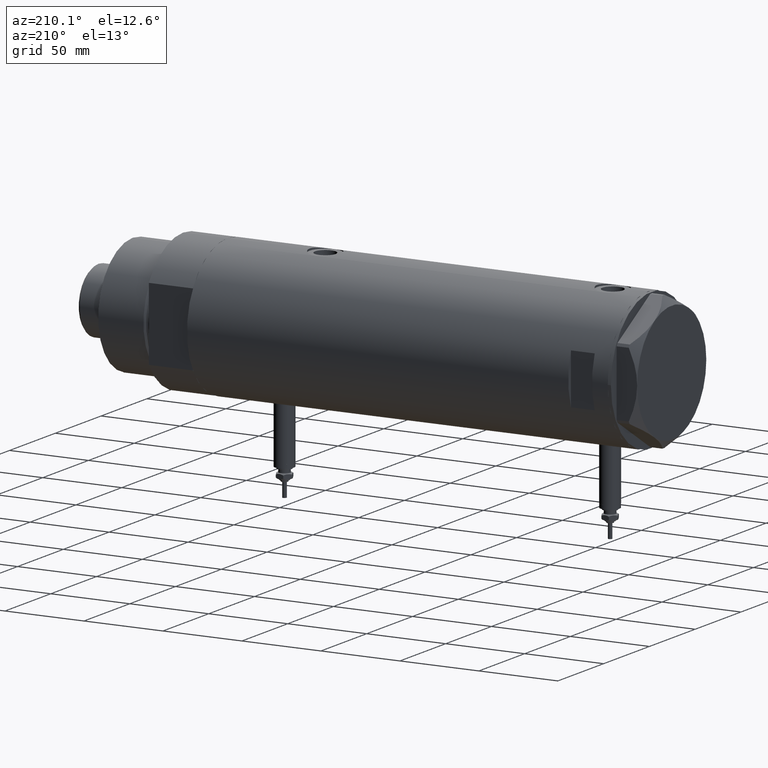
[diagram: clean part render]
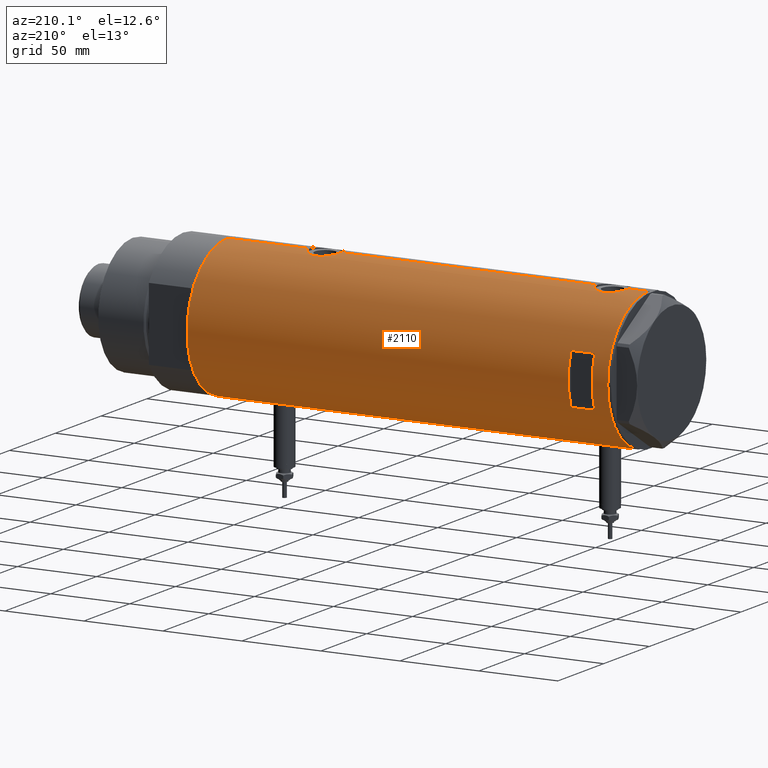
[diagram: same view with one face highlighted and labeled with its STEP entity id]
A machine part, auxiliary view. The second image highlights one B-rep face of the part: STEP entity #2110.
In plain terms, the highlighted cylindrical surface (partial cylindrical patch) has radius 44 mm, axis along (-1, -0, 0).
Its self-contained STEP definition (entity closure, byte-faithful):
#19 = VECTOR ( 'NONE', #2995, 1000.000000000000000 ) ;
#47 = CARTESIAN_POINT ( 'NONE',  ( -43.99413512814552263, 0.8228129877960659311, 102.9909168567417623 ) ) ;
#67 = ORIENTED_EDGE ( 'NONE', *, *, #3993, .F. ) ;
#107 = VECTOR ( 'NONE', #5925, 1000.000000000000000 ) ;
#111 = CARTESIAN_POINT ( 'NONE',  ( 43.68141895191831736, 5.292250119194734204, 119.3910495228519437 ) ) ;
#120 = VERTEX_POINT ( 'NONE', #2300 ) ;
#138 = CARTESIAN_POINT ( 'NONE',  ( 43.92756755766649235, 2.604528169608121946, -61.42286588097655908 ) ) ;
#168 = CARTESIAN_POINT ( 'NONE',  ( 43.77939001959705934, 4.442287752090383179, -80.08306177559163075 ) ) ;
#181 = CARTESIAN_POINT ( 'NONE',  ( -44.00000000000000000, 5.388445781982983516E-15, -103.1499999999999915 ) ) ;
#193 = CARTESIAN_POINT ( 'NONE',  ( 43.17277162440354488, 8.493905080221260562, -76.38787035108494194 ) ) ;
#204 = CARTESIAN_POINT ( 'NONE',  ( -43.95446647384543581, 2.010857111636599637, -90.97875773636060615 ) ) ;
#209 = CARTESIAN_POINT ( 'NONE',  ( -44.00000000000000000, 5.388445916248353619E-15, -133.1999999999999886 ) ) ;
#226 = CIRCLE ( 'NONE', #1967, 44.00000000000000000 ) ;
#243 = VECTOR ( 'NONE', #497, 1000.000000000000000 ) ;
#256 = CARTESIAN_POINT ( 'NONE',  ( 44.00000000000000000, 0.3269372501759409411, -61.10000000000001563 ) ) ;
#287 = CARTESIAN_POINT ( 'NONE',  ( 15.96871942267132027, 40.99999999999999289, -133.1999999999999886 ) ) ;
#301 = ORIENTED_EDGE ( 'NONE', *, *, #1733, .F. ) ;
#309 = CARTESIAN_POINT ( 'NONE',  ( 43.35294442506074120, 7.532526048221051873, 104.2906458550888971 ) ) ;
#320 = ORIENTED_EDGE ( 'NONE', *, *, #4632, .F. ) ;
#341 = CARTESIAN_POINT ( 'NONE',  ( -43.67867890111967455, 5.309046579850785541, -100.2042277907602141 ) ) ;
#342 = CARTESIAN_POINT ( 'NONE',  ( 44.00000000000000000, -3.917155089190972685E-21, -61.10000000000000142 ) ) ;
#357 = VERTEX_POINT ( 'NONE', #3507 ) ;
#372 = CARTESIAN_POINT ( 'NONE',  ( -43.59995593514495482, 5.920088975424566691, -94.88582091308217059 ) ) ;
#373 = CARTESIAN_POINT ( 'NONE',  ( 43.57657781376909156, 6.094873943596678778, 102.9652569888040290 ) ) ;
#400 = CARTESIAN_POINT ( 'NONE',  ( -43.57657963456318839, 6.089610171536606664, -95.47821460419186224 ) ) ;
#419 = AXIS2_PLACEMENT_3D ( 'NONE', #2740, #3285, #4602 ) ;
#440 = EDGE_CURVE ( 'NONE', #5231, #5683, #3969, .T. ) ;
#463 = CARTESIAN_POINT ( 'NONE',  ( 44.00000000000000000, -3.917104602093038540E-21, 120.8999999999999773 ) ) ;
#475 = CARTESIAN_POINT ( 'NONE',  ( -44.00000000000000000, 4.742435893011557518E-16, -90.64999999999997726 ) ) ;
#497 = DIRECTION ( 'NONE',  ( 0.000000000000000000, 0.000000000000000000, 1.000000000000000000 ) ) ;
#520 = FACE_OUTER_BOUND ( 'NONE', #2469, .T. ) ;
#532 = LINE ( 'NONE', #2072, #19 ) ;
#537 = ORIENTED_EDGE ( 'NONE', *, *, #1919, .F. ) ;
#567 = CARTESIAN_POINT ( 'NONE',  ( 42.84863276153907208, 9.999733523508362865, -71.75869904750778971 ) ) ;
#579 = CARTESIAN_POINT ( 'NONE',  ( 43.57805684119164624, 6.103282219787165452, 118.8481620164785824 ) ) ;
#594 = CARTESIAN_POINT ( 'NONE',  ( 43.80640706382535399, 4.134078575915395071, -61.98867178437915015 ) ) ;
#607 = AXIS2_PLACEMENT_3D ( 'NONE', #3108, #883, #793 ) ;
#634 = CARTESIAN_POINT ( 'NONE',  ( 43.85884410404901246, 3.534688330930384925, -80.46019808750332913 ) ) ;
#663 = CARTESIAN_POINT ( 'NONE',  ( 43.50382207688846137, 6.605942769308308371, -63.56395311161777784 ) ) ;
#687 = CARTESIAN_POINT ( 'NONE',  ( 43.71659050864932539, 5.015880325000608764, -79.77566825963823760 ) ) ;
#736 = CARTESIAN_POINT ( 'NONE',  ( -43.71901936021023971, 4.969830049220626655, 105.3883236230112317 ) ) ;
#748 = CARTESIAN_POINT ( 'NONE',  ( 43.04663170950395568, 9.110642017076083121, 106.7645249780960484 ) ) ;
#782 = CARTESIAN_POINT ( 'NONE',  ( -43.88968326835893663, 3.132363423941621150, 114.6237923235648140 ) ) ;
#793 = DIRECTION ( 'NONE',  ( -1.000000000000000000, -8.881784197001252323E-16, 0.000000000000000000 ) ) ;
#799 = CARTESIAN_POINT ( 'NONE',  ( 42.86370458161099606, 9.935807968041567406, 109.5909544957013395 ) ) ;
#828 = CARTESIAN_POINT ( 'NONE',  ( 0.000000000000000000, 0.000000000000000000, -133.1999999999999886 ) ) ;
#850 = CARTESIAN_POINT ( 'NONE',  ( -43.55382423478827292, 6.250151562062086441, 108.7941047051266281 ) ) ;
#856 = CARTESIAN_POINT ( 'NONE',  ( -15.96871942267132027, 40.99999999999999289, 108.1999999999999744 ) ) ;
#862 = CARTESIAN_POINT ( 'NONE',  ( 43.39051256276903246, 7.301963662770311281, 117.7402446821294149 ) ) ;
#865 = VERTEX_POINT ( 'NONE', #181 ) ;
#883 = DIRECTION ( 'NONE',  ( -0.000000000000000000, -0.000000000000000000, 1.000000000000000000 ) ) ;
#888 = CARTESIAN_POINT ( 'NONE',  ( 42.96547725528407824, 9.488625330801083280, 114.1245034721107316 ) ) ;
#893 = VECTOR ( 'NONE', #4171, 1000.000000000000000 ) ;
#922 = CARTESIAN_POINT ( 'NONE',  ( -43.71938389712227746, 4.966728892888062852, -93.08385547659128179 ) ) ;
#924 = CARTESIAN_POINT ( 'NONE',  ( 43.71454618729810448, 5.012329428678959253, 119.5593697405831364 ) ) ;
#1024 = CARTESIAN_POINT ( 'NONE',  ( 42.96879251999280314, 9.470609476412112926, -74.32722899941056482 ) ) ;
#1053 = CARTESIAN_POINT ( 'NONE',  ( 43.68141895191831736, 5.292250119194735980, -62.60895047714807049 ) ) ;
#1067 = CARTESIAN_POINT ( 'NONE',  ( 43.77712723341632994, 4.432620652875498557, 119.8699500975997125 ) ) ;
#1074 = B_SPLINE_CURVE_WITH_KNOTS ( 'NONE', 3,
 ( #2500, #4332, #2001, #2954, #5699, #204, #1548, #5919, #5525, #3174, #1773, #3628, #922, #5860, #4524, #4022, #4551, #372, #1318, #400, #1713, #2161, #2219, #3659, #2252, #3564, #4121, #5408, #5027, #341, #2283, #3201, #5981, #2193, #5470, #1252, #4082, #3110, #4965, #5434, #2780, #5953, #1806 ),
 .UNSPECIFIED., .F., .F.,
 ( 4, 2, 2, 2, 2, 2, 2, 2, 1, 2, 2, 2, 2, 2, 2, 2, 2, 2, 2, 2, 2, 4 ),
 ( 4.607873388256435088E-19, 0.001222818171749670340, 0.001834227257624505619, 0.002445636343499341114, 0.003668454515249027284, 0.004891272686998713454, 0.006114090858748398756, 0.006725499944623259188, 0.007336909030498119620, 0.007948318116372978318, 0.008559727202247837882, 0.009782545373997518848, 0.01100536354574719981, 0.01222818171749687904, 0.01283959080337173861, 0.01345099988924659644, 0.01467381806099631383, 0.01589663623274603296, 0.01650804531862088906, 0.01711945440449574862, 0.01834227257624546428, 0.01956509074799517994 ),
 .UNSPECIFIED. ) ;
#1079 = ORIENTED_EDGE ( 'NONE', *, *, #4776, .F. ) ;
#1106 = EDGE_CURVE ( 'NONE', #4961, #357, #3073, .T. ) ;
#1119 = CARTESIAN_POINT ( 'NONE',  ( 44.00000000000000000, -3.135075661981687665E-15, -81.09999999999999432 ) ) ;
#1164 = CARTESIAN_POINT ( 'NONE',  ( 44.00000000000000000, -2.552687571866728611E-15, 100.8999999999999915 ) ) ;
#1181 = CARTESIAN_POINT ( 'NONE',  ( -43.64133398152736021, 5.607447751852152606, 106.4321395498756715 ) ) ;
#1234 = DIRECTION ( 'NONE',  ( -0.000000000000000000, -0.000000000000000000, -1.000000000000000000 ) ) ;
#1244 = DIRECTION ( 'NONE',  ( 1.000000000000000000, 0.000000000000000000, 0.000000000000000000 ) ) ;
#1248 = CARTESIAN_POINT ( 'NONE',  ( 44.00000000000000000, 0.000000000000000000, -133.1999999999999886 ) ) ;
#1252 = CARTESIAN_POINT ( 'NONE',  ( -43.88883895882799635, 3.130924084324101297, -102.3131245574814443 ) ) ;
#1280 = VECTOR ( 'NONE', #1639, 1000.000000000000000 ) ;
#1304 = CARTESIAN_POINT ( 'NONE',  ( -43.67863969133946966, 5.309394106110037370, 112.5037929650254540 ) ) ;
#1318 = CARTESIAN_POINT ( 'NONE',  ( -43.58362292239462477, 6.039157555656595733, -95.27736421551958301 ) ) ;
#1331 = CARTESIAN_POINT ( 'NONE',  ( -43.95549163632549750, 2.014511215452027937, 103.2694104429502033 ) ) ;
#1343 = CARTESIAN_POINT ( 'NONE',  ( 43.99635668041008074, 0.6544833911834539997, 120.8840070847752912 ) ) ;
#1363 = B_SPLINE_CURVE_WITH_KNOTS ( 'NONE', 3,
 ( #1119, #3899, #4314, #2490, #1601, #5712, #634, #168, #687, #3871, #2541, #4404, #5626, #1565, #1474, #193, #3414, #3359, #5186, #4375, #1024, #2883, #4742, #5658, #567, #3844, #1537, #4351, #5272, #4281, #2974, #5240, #1949, #2938, #3452, #4835, #5213, #663, #5745, #1053, #2909, #4769, #594, #2451, #138, #1989, #4465, #4552, #256, #342 ),
 .UNSPECIFIED., .F., .F.,
 ( 4, 2, 2, 2, 2, 2, 2, 2, 2, 2, 2, 2, 2, 2, 2, 2, 2, 2, 2, 2, 2, 2, 2, 2, 4 ),
 ( 3.045219632368639583E-18, 0.001960456513248893216, 0.002940684769873342860, 0.003920913026497792504, 0.005881369539746674445, 0.006861597796371113681, 0.007841826052995553784, 0.009802282566244465215, 0.01078251082286891746, 0.01176273907949336971, 0.01274296733611782195, 0.01372319559274227246, 0.01568365210599113879, 0.01764410861924000512, 0.01960456513248887145, 0.02058479338911330114, 0.02156502164573773431, 0.02254524990236216400, 0.02352547815898659370, 0.02548593467223548084, 0.02646616292885992441, 0.02744639118548436452, 0.02940684769873325166, 0.03038707595535769523, 0.03136730421198213187 ),
 .UNSPECIFIED. ) ;
#1372 = CARTESIAN_POINT ( 'NONE',  ( 43.27871541412905287, 7.937063204555986573, 116.9917499724602976 ) ) ;
#1474 = CARTESIAN_POINT ( 'NONE',  ( 43.27822890220284791, 7.945655169171514487, -77.20725383289291699 ) ) ;
#1537 = CARTESIAN_POINT ( 'NONE',  ( 42.86396777580259965, 9.934664719553401468, -69.78423800973480695 ) ) ;
#1548 = CARTESIAN_POINT ( 'NONE',  ( -43.94507179847653333, 2.206027755801677870, -91.04868477718203224 ) ) ;
#1565 = CARTESIAN_POINT ( 'NONE',  ( 43.35294442506074830, 7.532526048221050097, -77.70935414491110294 ) ) ;
#1592 = B_SPLINE_CURVE_WITH_KNOTS ( 'NONE', 3,
 ( #1164, #4941, #5436, #2626, #5803, #2131, #5409, #2660, #3060, #3025, #373, #4883, #4490, #309, #2107, #4916, #3961, #1654, #748, #3565, #3111, #4967, #2605, #799, #3987, #4124, #5672, #5054, #888, #2748, #5184, #1855, #2313, #5028, #1372, #3684, #862, #5920, #579, #111, #924, #1067, #1829, #5500, #1808, #2810, #4612, #1343, #5526, #463 ),
 .UNSPECIFIED., .F., .F.,
 ( 4, 2, 2, 2, 2, 2, 2, 2, 2, 2, 2, 2, 2, 2, 2, 2, 2, 2, 2, 2, 2, 2, 2, 2, 4 ),
 ( 2.479523669370822448E-18, 0.001960456513248879339, 0.002940684769873313370, 0.003920913026497747401, 0.005881369539746631077, 0.006861597796371071180, 0.007841826052995510415, 0.009802282566244392356, 0.01078251082286883072, 0.01176273907949326909, 0.01274296733611770746, 0.01372319559274214583, 0.01568365210599106593, 0.01764410861923998430, 0.01960456513248890267, 0.02058479338911334278, 0.02156502164573777941, 0.02254524990236221951, 0.02352547815898665615, 0.02548593467223552941, 0.02646616292885996952, 0.02744639118548440615, 0.02940684769873327942, 0.03038707595535771258, 0.03136730421198213881 ),
 .UNSPECIFIED. ) ;
#1601 = CARTESIAN_POINT ( 'NONE',  ( 43.92466059386730137, 2.593004216484783964, -80.76356669671353927 ) ) ;
#1639 = DIRECTION ( 'NONE',  ( 0.000000000000000000, 0.000000000000000000, 1.000000000000000000 ) ) ;
#1641 = CARTESIAN_POINT ( 'NONE',  ( -43.58362292239462477, 6.039157555656595733, 110.8226357844803402 ) ) ;
#1654 = CARTESIAN_POINT ( 'NONE',  ( 43.07598348983507464, 8.971306953823011909, 106.4703057681281280 ) ) ;
#1668 = CARTESIAN_POINT ( 'NONE',  ( -43.74833112883977293, 4.708208586952001617, 113.3305038350888196 ) ) ;
#1670 = CIRCLE ( 'NONE', #607, 44.00000000000000000 ) ;
#1713 = CARTESIAN_POINT ( 'NONE',  ( -43.55963022497231663, 6.210088036293396563, -96.08353836982574592 ) ) ;
#1730 = CARTESIAN_POINT ( 'NONE',  ( -43.64122538274737195, 5.608286354294323317, 111.9661138696334035 ) ) ;
#1733 = EDGE_CURVE ( 'NONE', #1911, #1882, #532, .T. ) ;
#1748 = CARTESIAN_POINT ( 'NONE',  ( 44.00000000000000000, -2.552687571866728611E-15, 100.8999999999999915 ) ) ;
#1756 = CARTESIAN_POINT ( 'NONE',  ( -43.55973179376100290, 6.209370339246232717, 108.3793823294012668 ) ) ;
#1773 = CARTESIAN_POINT ( 'NONE',  ( -43.80646232387288563, 4.132500855894024383, -92.19354414596644176 ) ) ;
#1790 = CIRCLE ( 'NONE', #4424, 44.00000000000000000 ) ;
#1806 = CARTESIAN_POINT ( 'NONE',  ( -44.00000000000000000, 5.388445781982983516E-15, -103.1499999999999915 ) ) ;
#1808 = CARTESIAN_POINT ( 'NONE',  ( 43.92756755766649235, 2.604528169608113064, 120.5771341190234125 ) ) ;
#1829 = CARTESIAN_POINT ( 'NONE',  ( 43.80640706382536109, 4.134078575915387965, 120.0113282156208925 ) ) ;
#1855 = CARTESIAN_POINT ( 'NONE',  ( 43.13962074468734897, 8.660138848900670538, 115.9108974116393256 ) ) ;
#1858 = VERTEX_POINT ( 'NONE', #2573 ) ;
#1882 = VERTEX_POINT ( 'NONE', #5947 ) ;
#1911 = VERTEX_POINT ( 'NONE', #856 ) ;
#1919 = EDGE_CURVE ( 'NONE', #1882, #5231, #226, .T. ) ;
#1949 = CARTESIAN_POINT ( 'NONE',  ( 43.17306590853068116, 8.492365194390515626, -65.80987467306543692 ) ) ;
#1967 = AXIS2_PLACEMENT_3D ( 'NONE', #4078, #5855, #3053 ) ;
#1989 = CARTESIAN_POINT ( 'NONE',  ( 43.97062489912107708, 1.639461988184798935, -61.22985373334012849 ) ) ;
#2001 = CARTESIAN_POINT ( 'NONE',  ( -43.99417607942194763, 0.8200150578638748522, -90.69063327483260650 ) ) ;
#2055 = LINE ( 'NONE', #3462, #2963 ) ;
#2059 = ORIENTED_EDGE ( 'NONE', *, *, #440, .F. ) ;
#2072 = CARTESIAN_POINT ( 'NONE',  ( -15.96871942267132027, 40.99999999999999289, -133.1999999999999886 ) ) ;
#2093 = CARTESIAN_POINT ( 'NONE',  ( -43.94507179847653333, 2.206027755801677870, 115.0513152228179052 ) ) ;
#2107 = CARTESIAN_POINT ( 'NONE',  ( 43.27822890220284791, 7.945655169171516263, 104.7927461671070688 ) ) ;
#2110 = ADVANCED_FACE ( 'NONE', ( #2277, #520 ), #5588, .T. ) ;
#2131 = CARTESIAN_POINT ( 'NONE',  ( 43.88297407487991109, 3.222431612395379119, 101.4277179797065713 ) ) ;
#2161 = CARTESIAN_POINT ( 'NONE',  ( -43.55386785759471024, 6.249847571481740971, -96.48945052382043741 ) ) ;
#2183 = CARTESIAN_POINT ( 'NONE',  ( -43.57657963456318839, 6.089610171536606664, 110.6217853958080894 ) ) ;
#2193 = CARTESIAN_POINT ( 'NONE',  ( -43.83576802966640429, 3.813209221108459168, -101.8686549035471103 ) ) ;
#2209 = CARTESIAN_POINT ( 'NONE',  ( -43.97754480947185129, 1.419697478855583617, 115.2900327605206883 ) ) ;
#2219 = CARTESIAN_POINT ( 'NONE',  ( -43.55382423478827292, 6.250151562062086441, -97.30589529487338041 ) ) ;
#2252 = CARTESIAN_POINT ( 'NONE',  ( -43.58221825186232223, 6.049526113783018744, -98.52262970817956500 ) ) ;
#2258 = VERTEX_POINT ( 'NONE', #209 ) ;
#2277 = FACE_BOUND ( 'NONE', #3055, .T. ) ;
#2283 = CARTESIAN_POINT ( 'NONE',  ( -43.71901936021023971, 4.969830049220626655, -100.7116763769886916 ) ) ;
#2297 = CARTESIAN_POINT ( 'NONE',  ( -43.97181775256600389, 1.624866278047415680, 103.1510708161490300 ) ) ;
#2300 = CARTESIAN_POINT ( 'NONE',  ( 44.00000000000000000, -3.917155089190972685E-21, -61.10000000000000142 ) ) ;
#2313 = CARTESIAN_POINT ( 'NONE',  ( 43.17306590853067405, 8.492365194390513849, 116.1901253269345489 ) ) ;
#2422 = CARTESIAN_POINT ( 'NONE',  ( 15.96871942267132027, 40.99999999999999289, 123.1999999999999744 ) ) ;
#2436 = VERTEX_POINT ( 'NONE', #3075 ) ;
#2438 = DIRECTION ( 'NONE',  ( 1.000000000000000000, 0.000000000000000000, 0.000000000000000000 ) ) ;
#2451 = CARTESIAN_POINT ( 'NONE',  ( 43.88561577393362256, 3.228056721358715020, -61.61278334272176949 ) ) ;
#2469 = EDGE_LOOP ( 'NONE', ( #5202, #4822, #4270, #2840, #4422, #3886, #1079, #2669, #4819, #3319, #67, #3106 ) ) ;
#2490 = CARTESIAN_POINT ( 'NONE',  ( 43.94229162222111285, 2.275476993733910991, -80.84314464222306640 ) ) ;
#2500 = CARTESIAN_POINT ( 'NONE',  ( -44.00000000000000000, 4.742435893011557518E-16, -90.64999999999997726 ) ) ;
#2524 = EDGE_CURVE ( 'NONE', #2776, #357, #3190, .T. ) ;
#2541 = CARTESIAN_POINT ( 'NONE',  ( 43.57657781376909156, 6.094873943596678778, -79.03474301119597101 ) ) ;
#2573 = CARTESIAN_POINT ( 'NONE',  ( 44.00000000000000000, 0.000000000000000000, 133.1999999999999886 ) ) ;
#2591 = CARTESIAN_POINT ( 'NONE',  ( -43.74805001749254529, 4.711035428619386956, 105.0722393587420243 ) ) ;
#2605 = CARTESIAN_POINT ( 'NONE',  ( 42.90786968859021044, 9.742642423712171151, 108.6219770345287685 ) ) ;
#2624 = CARTESIAN_POINT ( 'NONE',  ( -44.00000000000000000, 5.388445916248353619E-15, -133.1999999999999886 ) ) ;
#2626 = CARTESIAN_POINT ( 'NONE',  ( 43.94229162222111285, 2.275476993733910547, 101.1568553577768768 ) ) ;
#2644 = CARTESIAN_POINT ( 'NONE',  ( -43.83593455218809254, 3.811409182021277431, 114.1701492770349944 ) ) ;
#2660 = CARTESIAN_POINT ( 'NONE',  ( 43.77939001959705223, 4.442287752090382291, 101.9169382244083977 ) ) ;
#2669 = ORIENTED_EDGE ( 'NONE', *, *, #4607, .F. ) ;
#2730 = CARTESIAN_POINT ( 'NONE',  ( -43.92459115390705193, 2.581892149020998950, 103.5045417292665206 ) ) ;
#2740 = CARTESIAN_POINT ( 'NONE',  ( 0.000000000000000000, 0.000000000000000000, -133.1999999999999886 ) ) ;
#2746 = EDGE_CURVE ( 'NONE', #2436, #2258, #1790, .T. ) ;
#2748 = CARTESIAN_POINT ( 'NONE',  ( 43.04652664061922707, 9.111152824375430725, 115.0345800921458874 ) ) ;
#2776 = VERTEX_POINT ( 'NONE', #4516 ) ;
#2780 = CARTESIAN_POINT ( 'NONE',  ( -43.99413512814552263, 0.8228129877960659311, -103.1090831432581894 ) ) ;
#2810 = CARTESIAN_POINT ( 'NONE',  ( 43.97062489912108418, 1.639461988184795604, 120.7701462666598360 ) ) ;
#2840 = ORIENTED_EDGE ( 'NONE', *, *, #1106, .T. ) ;
#2883 = CARTESIAN_POINT ( 'NONE',  ( 42.92624534982631701, 9.661626915142807803, -73.70008004144708025 ) ) ;
#2902 = DIRECTION ( 'NONE',  ( 0.000000000000000000, 0.000000000000000000, 1.000000000000000000 ) ) ;
#2909 = CARTESIAN_POINT ( 'NONE',  ( 43.71454618729809738, 5.012329428678969911, -62.44063025941689915 ) ) ;
#2938 = CARTESIAN_POINT ( 'NONE',  ( 43.24261242176995523, 8.130827601038829400, -65.26944813145829016 ) ) ;
#2954 = CARTESIAN_POINT ( 'NONE',  ( -43.97754480947185129, 1.419697478855583617, -90.80996723947920657 ) ) ;
#2963 = VECTOR ( 'NONE', #5312, 1000.000000000000000 ) ;
#2974 = CARTESIAN_POINT ( 'NONE',  ( 43.07641822757290129, 8.969229373860576615, -66.66603764209827432 ) ) ;
#2995 = DIRECTION ( 'NONE',  ( 0.000000000000000000, 0.000000000000000000, 1.000000000000000000 ) ) ;
#3025 = CARTESIAN_POINT ( 'NONE',  ( 43.61291203895921598, 5.829986172017926016, 102.7687128921316884 ) ) ;
#3043 = CARTESIAN_POINT ( 'NONE',  ( -43.66575107734168171, 5.414026674167576658, 106.0706491196230132 ) ) ;
#3053 = DIRECTION ( 'NONE',  ( 1.000000000000000000, -8.881784197001252323E-16, 0.000000000000000000 ) ) ;
#3055 = EDGE_LOOP ( 'NONE', ( #320, #2059, #537, #301 ) ) ;
#3060 = CARTESIAN_POINT ( 'NONE',  ( 43.71659050864931828, 5.015880325000608764, 102.2243317403618050 ) ) ;
#3073 = LINE ( 'NONE', #4474, #1280 ) ;
#3075 = CARTESIAN_POINT ( 'NONE',  ( 44.00000000000000000, 0.000000000000000000, -133.1999999999999886 ) ) ;
#3080 = DIRECTION ( 'NONE',  ( 0.000000000000000000, 0.000000000000000000, 1.000000000000000000 ) ) ;
#3106 = ORIENTED_EDGE ( 'NONE', *, *, #3911, .F. ) ;
#3108 = CARTESIAN_POINT ( 'NONE',  ( 0.000000000000000000, 0.000000000000000000, 108.1999999999999602 ) ) ;
#3110 = CARTESIAN_POINT ( 'NONE',  ( -43.92459115390705193, 2.581892149020998950, -102.5954582707334168 ) ) ;
#3111 = CARTESIAN_POINT ( 'NONE',  ( 42.96879251999280314, 9.470609476412112926, 107.6727710005894210 ) ) ;
#3126 = CARTESIAN_POINT ( 'NONE',  ( -43.55963022497231663, 6.210088036293396563, 110.0164616301742200 ) ) ;
#3162 = CARTESIAN_POINT ( 'NONE',  ( -43.71938389712227746, 4.966728892888062852, 113.0161445234086841 ) ) ;
#3174 = CARTESIAN_POINT ( 'NONE',  ( -43.83593455218809254, 3.811409182021277431, -91.92985072296495730 ) ) ;
#3190 = B_SPLINE_CURVE_WITH_KNOTS ( 'NONE', 3,
 ( #5816, #4952, #3580, #2209, #5368, #5336, #2093, #4069, #782, #2644, #3946, #1668, #3162, #1304, #4510, #1730, #5421, #5902, #1641, #2183, #3126, #3522, #850, #1756, #3610, #5792, #3488, #1181, #3043, #4902, #736, #2591, #4450, #4101, #4681, #4236, #5104, #2730, #1331, #2297, #47, #4651, #3698 ),
 .UNSPECIFIED., .F., .F.,
 ( 4, 2, 2, 2, 2, 2, 2, 2, 1, 2, 2, 2, 2, 2, 2, 2, 2, 2, 2, 2, 2, 4 ),
 ( 4.607873388256435088E-19, 0.001222818171749670340, 0.001834227257624505619, 0.002445636343499341114, 0.003668454515249027284, 0.004891272686998713454, 0.006114090858748398756, 0.006725499944623259188, 0.007336909030498119620, 0.007948318116372978318, 0.008559727202247837882, 0.009782545373997518848, 0.01100536354574719981, 0.01222818171749687904, 0.01283959080337173861, 0.01345099988924659644, 0.01467381806099631383, 0.01589663623274603296, 0.01650804531862088906, 0.01711945440449574862, 0.01834227257624546428, 0.01956509074799517994 ),
 .UNSPECIFIED. ) ;
#3201 = CARTESIAN_POINT ( 'NONE',  ( -43.74805001749254529, 4.711035428619386956, -101.0277606412579843 ) ) ;
#3285 = DIRECTION ( 'NONE',  ( 0.000000000000000000, 0.000000000000000000, 1.000000000000000000 ) ) ;
#3319 = ORIENTED_EDGE ( 'NONE', *, *, #4241, .F. ) ;
#3359 = CARTESIAN_POINT ( 'NONE',  ( 43.07598348983507464, 8.971306953823004804, -75.52969423187190046 ) ) ;
#3414 = CARTESIAN_POINT ( 'NONE',  ( 43.13897484505559987, 8.663345277311663040, -76.10529600060515065 ) ) ;
#3452 = CARTESIAN_POINT ( 'NONE',  ( 43.27871541412905998, 7.937063204555987461, -65.00825002753970239 ) ) ;
#3462 = CARTESIAN_POINT ( 'NONE',  ( 44.00000000000000000, 0.000000000000000000, -133.1999999999999886 ) ) ;
#3488 = CARTESIAN_POINT ( 'NONE',  ( -43.62981559643959883, 5.696090409300652802, 106.6194863458547530 ) ) ;
#3507 = CARTESIAN_POINT ( 'NONE',  ( -44.00000000000000000, 5.388445781982983516E-15, 102.9499999999999886 ) ) ;
#3522 = CARTESIAN_POINT ( 'NONE',  ( -43.55386785759471024, 6.249847571481740971, 109.6105494761795285 ) ) ;
#3564 = CARTESIAN_POINT ( 'NONE',  ( -43.59867737633045692, 5.931302618788633296, -98.91249495029886418 ) ) ;
#3565 = CARTESIAN_POINT ( 'NONE',  ( 42.99303682946563043, 9.360292926890506848, 107.3657577979279694 ) ) ;
#3580 = CARTESIAN_POINT ( 'NONE',  ( -43.99417607942194763, 0.8200150578638748522, 115.4093667251674020 ) ) ;
#3610 = CARTESIAN_POINT ( 'NONE',  ( -43.58221825186232223, 6.049526113783018744, 107.5773702918203583 ) ) ;
#3628 = CARTESIAN_POINT ( 'NONE',  ( -43.74833112883977293, 4.708208586952001617, -92.76949616491124573 ) ) ;
#3638 = CARTESIAN_POINT ( 'NONE',  ( -44.00000000000000000, 5.388445916248353619E-15, 133.1999999999999886 ) ) ;
#3659 = CARTESIAN_POINT ( 'NONE',  ( -43.55973179376100290, 6.209370339246232717, -97.72061767059869908 ) ) ;
#3684 = CARTESIAN_POINT ( 'NONE',  ( 43.35257020184194232, 7.523219862841656891, 117.4960255408413161 ) ) ;
#3691 = LINE ( 'NONE', #4669, #243 ) ;
#3698 = CARTESIAN_POINT ( 'NONE',  ( -44.00000000000000000, 5.388445781982983516E-15, 102.9499999999999886 ) ) ;
#3844 = CARTESIAN_POINT ( 'NONE',  ( 42.84850876528982866, 10.00026482975808051, -70.44941694529578058 ) ) ;
#3871 = CARTESIAN_POINT ( 'NONE',  ( 43.61291203895920887, 5.829986172017926016, -79.23128710786828321 ) ) ;
#3886 = ORIENTED_EDGE ( 'NONE', *, *, #5430, .T. ) ;
#3893 = AXIS2_PLACEMENT_3D ( 'NONE', #5207, #2902, #2438 ) ;
#3899 = CARTESIAN_POINT ( 'NONE',  ( 44.00000000000001421, 0.6630566900259822205, -81.10000000000002274 ) ) ;
#3911 = EDGE_CURVE ( 'NONE', #2436, #5653, #3691, .T. ) ;
#3946 = CARTESIAN_POINT ( 'NONE',  ( -43.80646232387288563, 4.132500855894024383, 113.9064558540335526 ) ) ;
#3961 = CARTESIAN_POINT ( 'NONE',  ( 43.13897484505560698, 8.663345277311673698, 105.8947039993948920 ) ) ;
#3969 = LINE ( 'NONE', #287, #4683 ) ;
#3987 = CARTESIAN_POINT ( 'NONE',  ( 42.84863276153905787, 9.999733523508361088, 110.2413009524922103 ) ) ;
#3993 = EDGE_CURVE ( 'NONE', #5653, #120, #1363, .T. ) ;
#4022 = CARTESIAN_POINT ( 'NONE',  ( -43.64122538274737195, 5.608286354294323317, -94.13388613036657659 ) ) ;
#4069 = CARTESIAN_POINT ( 'NONE',  ( -43.91413175532567692, 2.773555030353453965, 114.8158423836674302 ) ) ;
#4078 = CARTESIAN_POINT ( 'NONE',  ( 0.000000000000000000, 0.000000000000000000, 123.1999999999999744 ) ) ;
#4082 = CARTESIAN_POINT ( 'NONE',  ( -43.91315028150560096, 2.769134003554746482, -102.5068261937540370 ) ) ;
#4091 = CIRCLE ( 'NONE', #3893, 44.00000000000000000 ) ;
#4101 = CARTESIAN_POINT ( 'NONE',  ( -43.83576802966640429, 3.813209221108459168, 104.2313450964528840 ) ) ;
#4117 = EDGE_CURVE ( 'NONE', #5367, #4205, #1592, .T. ) ;
#4121 = CARTESIAN_POINT ( 'NONE',  ( -43.62981559643959883, 5.696090409300652802, -99.48051365414524128 ) ) ;
#4124 = CARTESIAN_POINT ( 'NONE',  ( 42.84850876528983576, 10.00026482975808229, 111.5505830547042621 ) ) ;
#4171 = DIRECTION ( 'NONE',  ( 0.000000000000000000, 0.000000000000000000, 1.000000000000000000 ) ) ;
#4205 = VERTEX_POINT ( 'NONE', #5760 ) ;
#4236 = CARTESIAN_POINT ( 'NONE',  ( -43.88883895882799635, 3.130924084324101297, 103.7868754425185358 ) ) ;
#4241 = EDGE_CURVE ( 'NONE', #120, #5367, #2055, .T. ) ;
#4270 = ORIENTED_EDGE ( 'NONE', *, *, #4299, .F. ) ;
#4281 = CARTESIAN_POINT ( 'NONE',  ( 43.04652664061920575, 9.111152824375427173, -66.96541990785412679 ) ) ;
#4299 = EDGE_CURVE ( 'NONE', #4961, #865, #1074, .T. ) ;
#4314 = CARTESIAN_POINT ( 'NONE',  ( 43.98503110884232115, 1.314607393679875225, -81.03470984345550221 ) ) ;
#4332 = CARTESIAN_POINT ( 'NONE',  ( -44.00000000000000711, 0.4135148353567996149, -90.64999999999996305 ) ) ;
#4351 = CARTESIAN_POINT ( 'NONE',  ( 42.92259096922160921, 9.678247830257129536, -68.49994006971208194 ) ) ;
#4375 = CARTESIAN_POINT ( 'NONE',  ( 42.99303682946561622, 9.360292926890506848, -74.63424220207204485 ) ) ;
#4404 = CARTESIAN_POINT ( 'NONE',  ( 43.50265731352002518, 6.601850423195592121, -78.61819167298952493 ) ) ;
#4422 = ORIENTED_EDGE ( 'NONE', *, *, #2524, .F. ) ;
#4424 = AXIS2_PLACEMENT_3D ( 'NONE', #828, #3080, #1244 ) ;
#4450 = CARTESIAN_POINT ( 'NONE',  ( -43.80687348212602217, 4.128385987736833407, 104.4895125668903404 ) ) ;
#4465 = CARTESIAN_POINT ( 'NONE',  ( 43.98169492814103165, 1.310824514239770533, -61.18080219619314875 ) ) ;
#4474 = CARTESIAN_POINT ( 'NONE',  ( -44.00000000000000000, 5.388445916248353619E-15, -133.1999999999999886 ) ) ;
#4480 = EDGE_CURVE ( 'NONE', #2258, #865, #5320, .T. ) ;
#4486 = DIRECTION ( 'NONE',  ( 0.000000000000000000, 0.000000000000000000, 1.000000000000000000 ) ) ;
#4490 = CARTESIAN_POINT ( 'NONE',  ( 43.46520118248735542, 6.843279251446916511, 103.6010167278783172 ) ) ;
#4510 = CARTESIAN_POINT ( 'NONE',  ( -43.66555354895124452, 5.415612800338318600, 112.3265635717755799 ) ) ;
#4516 = CARTESIAN_POINT ( 'NONE',  ( -44.00000000000000000, 4.742435893011557518E-16, 115.4500000000000028 ) ) ;
#4524 = CARTESIAN_POINT ( 'NONE',  ( -43.66555354895124452, 5.415612800338318600, -93.77343642822444281 ) ) ;
#4551 = CARTESIAN_POINT ( 'NONE',  ( -43.61859254253774054, 5.782454868881351295, -94.50213599105534001 ) ) ;
#4552 = CARTESIAN_POINT ( 'NONE',  ( 43.99635668041005943, 0.6544833911834577744, -61.11599291522468747 ) ) ;
#4602 = DIRECTION ( 'NONE',  ( 1.000000000000000000, 0.000000000000000000, 0.000000000000000000 ) ) ;
#4607 = EDGE_CURVE ( 'NONE', #4205, #1858, #5052, .T. ) ;
#4612 = CARTESIAN_POINT ( 'NONE',  ( 43.98169492814103165, 1.310824514239766536, 120.8191978038068299 ) ) ;
#4632 = EDGE_CURVE ( 'NONE', #5683, #1911, #1670, .T. ) ;
#4651 = CARTESIAN_POINT ( 'NONE',  ( -43.99999999999997158, 0.4081702738789203533, 102.9499999999999460 ) ) ;
#4669 = CARTESIAN_POINT ( 'NONE',  ( 44.00000000000000000, 0.000000000000000000, -133.1999999999999886 ) ) ;
#4681 = CARTESIAN_POINT ( 'NONE',  ( -43.87596296923810968, 3.305851531861728976, 103.8919641412373807 ) ) ;
#4683 = VECTOR ( 'NONE', #1234, 1000.000000000000000 ) ;
#4742 = CARTESIAN_POINT ( 'NONE',  ( 42.90786968859021044, 9.742642423712167599, -73.37802296547127412 ) ) ;
#4769 = CARTESIAN_POINT ( 'NONE',  ( 43.77712723341632284, 4.432620652875510103, -62.13004990240030878 ) ) ;
#4776 = EDGE_CURVE ( 'NONE', #1858, #5530, #4091, .T. ) ;
#4819 = ORIENTED_EDGE ( 'NONE', *, *, #4117, .F. ) ;
#4822 = ORIENTED_EDGE ( 'NONE', *, *, #4480, .T. ) ;
#4835 = CARTESIAN_POINT ( 'NONE',  ( 43.35257020184193522, 7.523219862841653338, -64.50397445915864125 ) ) ;
#4883 = CARTESIAN_POINT ( 'NONE',  ( 43.50265731352001808, 6.601850423195591233, 103.3818083270104466 ) ) ;
#4902 = CARTESIAN_POINT ( 'NONE',  ( -43.67867890111967455, 5.309046579850785541, 105.8957722092397518 ) ) ;
#4916 = CARTESIAN_POINT ( 'NONE',  ( 43.17277162440354488, 8.493905080221262338, 105.6121296489150438 ) ) ;
#4941 = CARTESIAN_POINT ( 'NONE',  ( 44.00000000000002132, 0.6630566900259825536, 100.9000000000000199 ) ) ;
#4952 = CARTESIAN_POINT ( 'NONE',  ( -44.00000000000000711, 0.4135148353567996149, 115.4500000000000028 ) ) ;
#4961 = VERTEX_POINT ( 'NONE', #475 ) ;
#4965 = CARTESIAN_POINT ( 'NONE',  ( -43.95549163632549750, 2.014511215452027937, -102.8305895570497626 ) ) ;
#4967 = CARTESIAN_POINT ( 'NONE',  ( 42.92624534982631701, 9.661626915142809580, 108.2999199585528913 ) ) ;
#4997 = VECTOR ( 'NONE', #4486, 1000.000000000000000 ) ;
#5027 = CARTESIAN_POINT ( 'NONE',  ( -43.66575107734168171, 5.414026674167576658, -100.0293508803769669 ) ) ;
#5028 = CARTESIAN_POINT ( 'NONE',  ( 43.24261242176996234, 8.130827601038829400, 116.7305518685416814 ) ) ;
#5052 = LINE ( 'NONE', #1248, #893 ) ;
#5054 = CARTESIAN_POINT ( 'NONE',  ( 42.92259096922160211, 9.678247830257127760, 113.5000599302879607 ) ) ;
#5104 = CARTESIAN_POINT ( 'NONE',  ( -43.91315028150560096, 2.769134003554746482, 103.5931738062459431 ) ) ;
#5183 = CARTESIAN_POINT ( 'NONE',  ( 15.96871942267132027, 40.99999999999999289, 108.1999999999999744 ) ) ;
#5184 = CARTESIAN_POINT ( 'NONE',  ( 43.07641822757289418, 8.969229373860565957, 115.3339623579017257 ) ) ;
#5186 = CARTESIAN_POINT ( 'NONE',  ( 43.04663170950396278, 9.110642017076083121, -75.23547502190392322 ) ) ;
#5202 = ORIENTED_EDGE ( 'NONE', *, *, #2746, .T. ) ;
#5207 = CARTESIAN_POINT ( 'NONE',  ( 0.000000000000000000, 0.000000000000000000, 133.1999999999999886 ) ) ;
#5213 = CARTESIAN_POINT ( 'NONE',  ( 43.39051256276902535, 7.301963662770313057, -64.25975531787057093 ) ) ;
#5231 = VERTEX_POINT ( 'NONE', #2422 ) ;
#5240 = CARTESIAN_POINT ( 'NONE',  ( 43.13962074468734187, 8.660138848900679420, -66.08910258836066021 ) ) ;
#5270 = CARTESIAN_POINT ( 'NONE',  ( 44.00000000000000000, -3.135075661981687665E-15, -81.09999999999999432 ) ) ;
#5272 = CARTESIAN_POINT ( 'NONE',  ( 42.96547725528408535, 9.488625330801083280, -67.87549652788928256 ) ) ;
#5312 = DIRECTION ( 'NONE',  ( 0.000000000000000000, 0.000000000000000000, 1.000000000000000000 ) ) ;
#5320 = LINE ( 'NONE', #2624, #4997 ) ;
#5336 = CARTESIAN_POINT ( 'NONE',  ( -43.95446647384543581, 2.010857111636599637, 115.1212422636393597 ) ) ;
#5367 = VERTEX_POINT ( 'NONE', #1748 ) ;
#5368 = CARTESIAN_POINT ( 'NONE',  ( -43.97068415157983878, 1.617901284326946909, 115.2404512830004251 ) ) ;
#5408 = CARTESIAN_POINT ( 'NONE',  ( -43.64133398152736021, 5.607447751852152606, -99.66786045012435125 ) ) ;
#5409 = CARTESIAN_POINT ( 'NONE',  ( 43.85884410404901246, 3.534688330930384925, 101.5398019124966567 ) ) ;
#5421 = CARTESIAN_POINT ( 'NONE',  ( -43.61859254253774054, 5.782454868881351295, 111.5978640089446401 ) ) ;
#5430 = EDGE_CURVE ( 'NONE', #2776, #5530, #5478, .T. ) ;
#5434 = CARTESIAN_POINT ( 'NONE',  ( -43.97181775256600389, 1.624866278047415680, -102.9489291838509359 ) ) ;
#5436 = CARTESIAN_POINT ( 'NONE',  ( 43.98503110884232115, 1.314607393679875669, 100.9652901565444836 ) ) ;
#5470 = CARTESIAN_POINT ( 'NONE',  ( -43.87596296923810968, 3.305851531861728976, -102.2080358587625852 ) ) ;
#5478 = LINE ( 'NONE', #5531, #107 ) ;
#5500 = CARTESIAN_POINT ( 'NONE',  ( 43.88561577393361546, 3.228056721358708359, 120.3872166572782163 ) ) ;
#5525 = CARTESIAN_POINT ( 'NONE',  ( -43.88968326835893663, 3.132363423941621150, -91.47620767643519457 ) ) ;
#5526 = CARTESIAN_POINT ( 'NONE',  ( 44.00000000000000711, 0.3269372501759374994, 120.8999999999999488 ) ) ;
#5530 = VERTEX_POINT ( 'NONE', #3638 ) ;
#5531 = CARTESIAN_POINT ( 'NONE',  ( -44.00000000000000000, 5.388445916248353619E-15, -133.1999999999999886 ) ) ;
#5588 = CYLINDRICAL_SURFACE ( 'NONE', #419, 44.00000000000000000 ) ;
#5626 = CARTESIAN_POINT ( 'NONE',  ( 43.46520118248735542, 6.843279251446916511, -78.39898327212164020 ) ) ;
#5653 = VERTEX_POINT ( 'NONE', #5270 ) ;
#5658 = CARTESIAN_POINT ( 'NONE',  ( 42.86370458161099606, 9.935807968041567406, -72.40904550429866049 ) ) ;
#5672 = CARTESIAN_POINT ( 'NONE',  ( 42.86396777580258544, 9.934664719553397916, 112.2157619902652073 ) ) ;
#5683 = VERTEX_POINT ( 'NONE', #5183 ) ;
#5699 = CARTESIAN_POINT ( 'NONE',  ( -43.97068415157983878, 1.617901284326946909, -90.85954871699952662 ) ) ;
#5712 = CARTESIAN_POINT ( 'NONE',  ( 43.88297407487990398, 3.222431612395380007, -80.57228202029341446 ) ) ;
#5745 = CARTESIAN_POINT ( 'NONE',  ( 43.57805684119164624, 6.103282219787164564, -63.15183798352140343 ) ) ;
#5760 = CARTESIAN_POINT ( 'NONE',  ( 44.00000000000000000, -3.917104602093038540E-21, 120.8999999999999773 ) ) ;
#5792 = CARTESIAN_POINT ( 'NONE',  ( -43.59867737633045692, 5.931302618788633296, 107.1875050497011301 ) ) ;
#5803 = CARTESIAN_POINT ( 'NONE',  ( 43.92466059386729427, 2.593004216484783964, 101.2364333032864323 ) ) ;
#5816 = CARTESIAN_POINT ( 'NONE',  ( -44.00000000000000000, 4.742435893011557518E-16, 115.4500000000000028 ) ) ;
#5855 = DIRECTION ( 'NONE',  ( -0.000000000000000000, -0.000000000000000000, -1.000000000000000000 ) ) ;
#5860 = CARTESIAN_POINT ( 'NONE',  ( -43.67863969133946966, 5.309394106110037370, -93.59620703497449767 ) ) ;
#5902 = CARTESIAN_POINT ( 'NONE',  ( -43.59995593514495482, 5.920088975424566691, 111.2141790869178237 ) ) ;
#5919 = CARTESIAN_POINT ( 'NONE',  ( -43.91413175532567692, 2.773555030353453965, -91.28415761633256409 ) ) ;
#5920 = CARTESIAN_POINT ( 'NONE',  ( 43.50382207688846847, 6.605942769308303930, 118.4360468883821937 ) ) ;
#5925 = DIRECTION ( 'NONE',  ( 0.000000000000000000, 0.000000000000000000, 1.000000000000000000 ) ) ;
#5947 = CARTESIAN_POINT ( 'NONE',  ( -15.96871942267132027, 40.99999999999999289, 123.1999999999999744 ) ) ;
#5953 = CARTESIAN_POINT ( 'NONE',  ( -43.99999999999997158, 0.4081702738789203533, -103.1499999999999488 ) ) ;
#5981 = CARTESIAN_POINT ( 'NONE',  ( -43.80687348212602217, 4.128385987736833407, -101.6104874331096113 ) ) ;